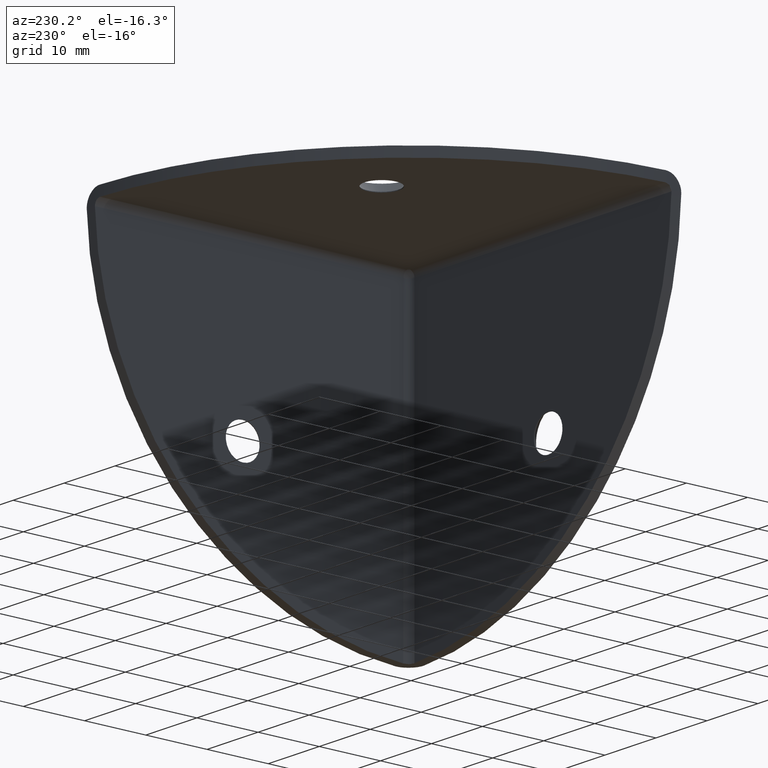
[diagram: clean part render]
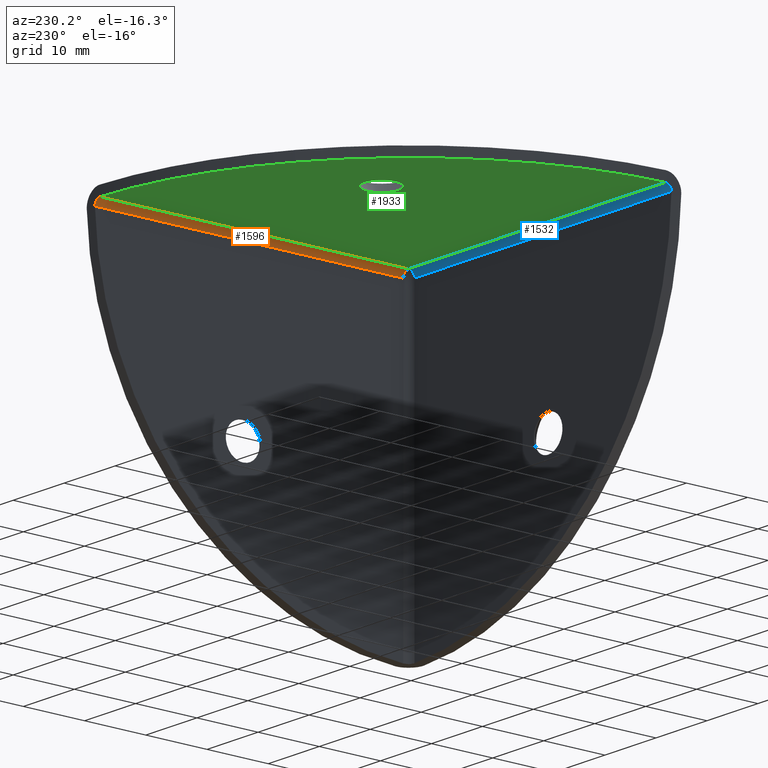
[diagram: same view with three faces highlighted in distinct colors, each labeled with its STEP entity id]
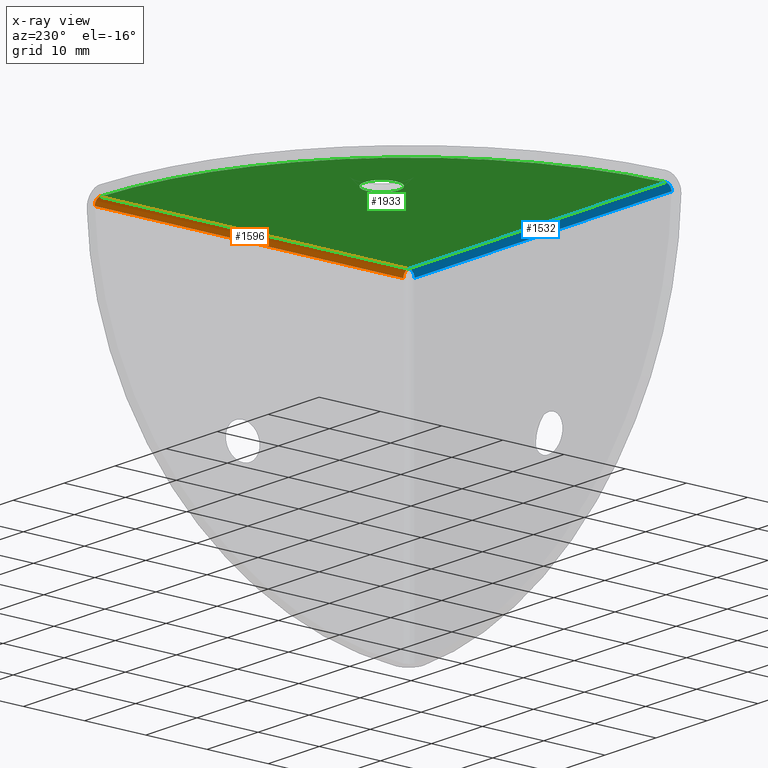
[diagram: x-ray of the same camera — body ghosted, the three highlighted faces saturated]
A machine part, auxiliary view with three faces highlighted in distinct colors.
The next image is the same camera in x-ray (body ghosted, the three faces saturated) — at least one of them is partly hidden behind the body in this view.
Their STEP definitions:

[orange] entity #1596 — the highlighted face is a freeform B-spline surface patch.
#1373=CARTESIAN_POINT('',(-1.600000000000000,2.600000000000000,50.399999999999999));
#1374=VERTEX_POINT('',#1373);
#1437=CARTESIAN_POINT('',(-2.600000000000000,2.600000000000000,51.399999999999999));
#1438=VERTEX_POINT('',#1437);
#1452=CARTESIAN_POINT('',(-2.600000000000000,2.600000000000000,51.399999999999999));
#1453=CARTESIAN_POINT('',(-1.600000000000000,2.600000000000001,51.399999999999999));
#1454=CARTESIAN_POINT('',(-1.600000000000000,2.600000000000000,50.399999999999999));
#1462=(BOUNDED_CURVE()B_SPLINE_CURVE(2,(#1452,#1453,#1454),.UNSPECIFIED.,.F.,.U.)CURVE()GEOMETRIC_REPRESENTATION_ITEM()QUASI_UNIFORM_CURVE()RATIONAL_B_SPLINE_CURVE((1.0,0.707106781186548,1.0))REPRESENTATION_ITEM(''));
#1463=EDGE_CURVE('',#1438,#1374,#1462,.T.);
#1533=CARTESIAN_POINT('',(-1.600951778418143,1.340104646377056,50.356380612634659));
#1534=CARTESIAN_POINT('',(-1.600951778418143,54.287206882381213,50.356380612634659));
#1535=CARTESIAN_POINT('',(-1.552065517383379,1.340104646377056,51.476060073914169));
#1536=CARTESIAN_POINT('',(-1.552065517383379,54.287206882381206,51.476060073914169));
#1537=CARTESIAN_POINT('',(-2.670057923380685,1.340104646377057,51.397542925077211));
#1538=CARTESIAN_POINT('',(-2.670057923380685,54.287206882381220,51.397542925077211));
#1546=(BOUNDED_SURFACE()B_SPLINE_SURFACE(1,2,((#1533,#1535,#1537),(#1534,#1536,#1538)),.UNSPECIFIED.,.F.,.F.,.U.)B_SPLINE_SURFACE_WITH_KNOTS((2,2),(3,3),(0.0,52.947102236004163),(0.0,0.994386482516117),.UNSPECIFIED.)GEOMETRIC_REPRESENTATION_ITEM()RATIONAL_B_SPLINE_SURFACE(((1.0,0.664513936473790,0.996233486233593),(1.0,0.664513936473790,0.996233486233593)))REPRESENTATION_ITEM('')SURFACE());
#1547=CARTESIAN_POINT('',(-1.600000000000045,52.978906015927301,50.399999999999999));
#1548=VERTEX_POINT('',#1547);
#1549=CARTESIAN_POINT('',(-1.892893218813860,52.995814144917702,51.107106781187007));
#1550=VERTEX_POINT('',#1549);
#1551=CARTESIAN_POINT('',(-1.600000000000000,52.978906015927301,50.399999999999999));
#1552=CARTESIAN_POINT('',(-1.600000000000001,52.980932897202933,50.465983707243183));
#1553=CARTESIAN_POINT('',(-1.606466771977097,52.982800404787923,50.530870518642999));
#1554=CARTESIAN_POINT('',(-1.625473760273683,52.985382712459007,50.626621821640697));
#1555=CARTESIAN_POINT('',(-1.633372059165146,52.986206912710607,50.658273814349862));
#1556=CARTESIAN_POINT('',(-1.652365442437346,52.987784805337753,50.721035332159097));
#1557=CARTESIAN_POINT('',(-1.663514982672477,52.988540259808808,50.752232695977817));
#1558=CARTESIAN_POINT('',(-1.701085360175703,52.990659848310337,50.842990642664667));
#1559=CARTESIAN_POINT('',(-1.731742159709256,52.991895005197307,50.900390665796813));
#1560=CARTESIAN_POINT('',(-1.804174111683421,52.994072226162999,51.009035016339837));
#1561=CARTESIAN_POINT('',(-1.846216729872224,52.995015616675467,51.060430292245428));
#1562=CARTESIAN_POINT('',(-1.892893218813860,52.995814144917702,51.107106781187007));
#1563=B_SPLINE_CURVE_WITH_KNOTS('',3,(#1551,#1552,#1553,#1554,#1555,#1556,#1557,#1558,#1559,#1560,#1561,#1562),.UNSPECIFIED.,.F.,.U.,(4,2,2,2,2,4),(0.0,0.250000000000012,0.375000000000018,0.500000000000024,0.750000000000012,1.0),.UNSPECIFIED.);
#1564=EDGE_CURVE('',#1548,#1550,#1563,.T.);
#1565=ORIENTED_EDGE('',*,*,#1564,.F.);
#1566=CARTESIAN_POINT('',(-1.600000000000000,2.600000000000000,50.399999999999999));
#1567=CARTESIAN_POINT('',(-1.600000000000045,52.978906015927301,50.399999999999999));
#1568=QUASI_UNIFORM_CURVE('',1,(#1566,#1567),.UNSPECIFIED.,.F.,.U.);
#1569=EDGE_CURVE('',#1374,#1548,#1568,.T.);
#1570=ORIENTED_EDGE('',*,*,#1569,.F.);
#1571=ORIENTED_EDGE('',*,*,#1463,.F.);
#1572=CARTESIAN_POINT('',(-2.600000000000000,52.978906015927301,51.399999999999999));
#1573=VERTEX_POINT('',#1572);
#1574=CARTESIAN_POINT('',(-2.600000000000000,52.978906015927301,51.399999999999999));
#1575=CARTESIAN_POINT('',(-2.600000000000000,2.600000000000000,51.399999999999999));
#1576=QUASI_UNIFORM_CURVE('',1,(#1574,#1575),.UNSPECIFIED.,.F.,.U.);
#1577=EDGE_CURVE('',#1573,#1438,#1576,.T.);
#1578=ORIENTED_EDGE('',*,*,#1577,.F.);
#1579=CARTESIAN_POINT('',(-1.892893218813860,52.995814144917702,51.107106781187007));
#1580=CARTESIAN_POINT('',(-1.939569483680681,52.995015620508873,51.153783046053768));
#1581=CARTESIAN_POINT('',(-1.990041304366374,52.994089542488631,51.195102201830963));
#1582=CARTESIAN_POINT('',(-2.071207689317572,52.992464749535387,51.249375048254286));
#1583=CARTESIAN_POINT('',(-2.099179681709927,52.991883712529997,51.266172150145692));
#1584=CARTESIAN_POINT('',(-2.156998055899073,52.990632912064527,51.297120093645802));
#1585=CARTESIAN_POINT('',(-2.186944370235894,52.989960548325953,51.311294180544500));
#1586=CARTESIAN_POINT('',(-2.277688229407410,52.987841851781582,51.348895816006042));
#1587=CARTESIAN_POINT('',(-2.339949193349719,52.986282590341183,51.367798766883709));
#1588=CARTESIAN_POINT('',(-2.467966679243131,52.982833395050548,51.393392207253008));
#1589=CARTESIAN_POINT('',(-2.534016511641641,52.980932890479238,51.400000000000020));
#1590=CARTESIAN_POINT('',(-2.600000000000000,52.978906015927301,51.399999999999999));
#1591=B_SPLINE_CURVE_WITH_KNOTS('',3,(#1579,#1580,#1581,#1582,#1583,#1584,#1585,#1586,#1587,#1588,#1589,#1590),.UNSPECIFIED.,.F.,.U.,(4,2,2,2,2,4),(0.0,0.250000000000005,0.375000000000008,0.500000000000010,0.750000000000005,1.0),.UNSPECIFIED.);
#1592=EDGE_CURVE('',#1550,#1573,#1591,.T.);
#1593=ORIENTED_EDGE('',*,*,#1592,.F.);
#1594=EDGE_LOOP('',(#1565,#1570,#1571,#1578,#1593));
#1595=FACE_OUTER_BOUND('',#1594,.T.);
#1596=ADVANCED_FACE('',(#1595),#1546,.F.);

[blue] entity #1532 — the highlighted face is a freeform B-spline surface patch.
#1366=CARTESIAN_POINT('',(-2.600000000000000,1.600000000000000,50.399999999999999));
#1367=VERTEX_POINT('',#1366);
#1437=CARTESIAN_POINT('',(-2.600000000000000,2.600000000000000,51.399999999999999));
#1438=VERTEX_POINT('',#1437);
#1439=CARTESIAN_POINT('',(-2.600000000000000,1.600000000000000,50.399999999999999));
#1440=CARTESIAN_POINT('',(-2.600000000000001,1.600000000000000,51.399999999999999));
#1441=CARTESIAN_POINT('',(-2.600000000000000,2.600000000000000,51.399999999999999));
#1449=(BOUNDED_CURVE()B_SPLINE_CURVE(2,(#1439,#1440,#1441),.UNSPECIFIED.,.F.,.U.)CURVE()GEOMETRIC_REPRESENTATION_ITEM()QUASI_UNIFORM_CURVE()RATIONAL_B_SPLINE_CURVE((1.0,0.707106781186548,1.0))REPRESENTATION_ITEM(''));
#1450=EDGE_CURVE('',#1367,#1438,#1449,.T.);
#1469=CARTESIAN_POINT('',(-1.340104646377056,2.626176948307875,51.399657324975557));
#1470=CARTESIAN_POINT('',(-54.287206882381213,2.626176948307875,51.399657324975557));
#1471=CARTESIAN_POINT('',(-1.340104646377056,1.535242411405881,51.428224451195995));
#1472=CARTESIAN_POINT('',(-54.287206882381213,1.535242411405881,51.428224451195995));
#1473=CARTESIAN_POINT('',(-1.340104646377056,1.601865201578136,50.338951460465147));
#1474=CARTESIAN_POINT('',(-54.287206882381213,1.601865201578136,50.338951460465147));
#1482=(BOUNDED_SURFACE()B_SPLINE_SURFACE(1,2,((#1469,#1471,#1473),(#1470,#1472,#1474)),.UNSPECIFIED.,.F.,.F.,.U.)B_SPLINE_SURFACE_WITH_KNOTS((2,2),(3,3),(0.0,52.947102236004163),(0.0,1.0),.UNSPECIFIED.)GEOMETRIC_REPRESENTATION_ITEM()RATIONAL_B_SPLINE_SURFACE(((1.0,0.675590207615660,1.0),(1.0,0.675590207615660,1.0)))REPRESENTATION_ITEM('')SURFACE());
#1483=CARTESIAN_POINT('',(-52.978906015927301,2.600000000000000,51.399999999999999));
#1484=VERTEX_POINT('',#1483);
#1485=CARTESIAN_POINT('',(-52.995814144917702,1.892893218813705,51.107106781186801));
#1486=VERTEX_POINT('',#1485);
#1487=CARTESIAN_POINT('',(-52.978906015927301,2.600000000000000,51.399999999999999));
#1488=CARTESIAN_POINT('',(-52.980932897202933,2.534016292756916,51.399999999999999));
#1489=CARTESIAN_POINT('',(-52.982800404787923,2.469129481357166,51.393533228022939));
#1490=CARTESIAN_POINT('',(-52.985382712459042,2.373378178359550,51.374526239726379));
#1491=CARTESIAN_POINT('',(-52.986206912710642,2.341726185650438,51.366627940834938));
#1492=CARTESIAN_POINT('',(-52.987784805337732,2.278964667841297,51.347634557562763));
#1493=CARTESIAN_POINT('',(-52.988540259808786,2.247767304022607,51.336485017327682));
#1494=CARTESIAN_POINT('',(-52.990659848310337,2.157009357335825,51.298914639824531));
#1495=CARTESIAN_POINT('',(-52.991895005197321,2.099609334203743,51.268257840291078));
#1496=CARTESIAN_POINT('',(-52.994072226162999,1.990964983660815,51.195825888317081));
#1497=CARTESIAN_POINT('',(-52.995015616675481,1.939569707755272,51.153783270128358));
#1498=CARTESIAN_POINT('',(-52.995814144917702,1.892893218813705,51.107106781186801));
#1499=B_SPLINE_CURVE_WITH_KNOTS('',3,(#1487,#1488,#1489,#1490,#1491,#1492,#1493,#1494,#1495,#1496,#1497,#1498),.UNSPECIFIED.,.F.,.U.,(4,2,2,2,2,4),(0.0,0.249999999999995,0.374999999999993,0.499999999999990,0.749999999999995,1.0),.UNSPECIFIED.);
#1500=EDGE_CURVE('',#1484,#1486,#1499,.T.);
#1501=ORIENTED_EDGE('',*,*,#1500,.F.);
#1502=CARTESIAN_POINT('',(-2.600000000000000,2.600000000000000,51.399999999999999));
#1503=CARTESIAN_POINT('',(-52.978906015927301,2.600000000000000,51.399999999999999));
#1504=QUASI_UNIFORM_CURVE('',1,(#1502,#1503),.UNSPECIFIED.,.F.,.U.);
#1505=EDGE_CURVE('',#1438,#1484,#1504,.T.);
#1506=ORIENTED_EDGE('',*,*,#1505,.F.);
#1507=ORIENTED_EDGE('',*,*,#1450,.F.);
#1508=CARTESIAN_POINT('',(-52.978906015927301,1.600000000000045,50.399999999999999));
#1509=VERTEX_POINT('',#1508);
#1510=CARTESIAN_POINT('',(-52.978906015927301,1.600000000000045,50.399999999999999));
#1511=CARTESIAN_POINT('',(-2.600000000000000,1.600000000000000,50.399999999999999));
#1512=QUASI_UNIFORM_CURVE('',1,(#1510,#1511),.UNSPECIFIED.,.F.,.U.);
#1513=EDGE_CURVE('',#1509,#1367,#1512,.T.);
#1514=ORIENTED_EDGE('',*,*,#1513,.F.);
#1515=CARTESIAN_POINT('',(-52.995814144917702,1.892893218813705,51.107106781186801));
#1516=CARTESIAN_POINT('',(-52.995015620508887,1.846216953946840,51.060430516319983));
#1517=CARTESIAN_POINT('',(-52.994089542488673,1.804897798169520,51.009958695634282));
#1518=CARTESIAN_POINT('',(-52.992464749535422,1.750624951746049,50.928792310683022));
#1519=CARTESIAN_POINT('',(-52.991883712529997,1.733827849854625,50.900820318290627));
#1520=CARTESIAN_POINT('',(-52.990632912064541,1.702879906354483,50.843001944101452));
#1521=CARTESIAN_POINT('',(-52.989960548325939,1.688705819455719,50.813055629764577));
#1522=CARTESIAN_POINT('',(-52.987841851781603,1.651104183994073,50.722311770592967));
#1523=CARTESIAN_POINT('',(-52.986282590341197,1.632201233116365,50.660050806650602));
#1524=CARTESIAN_POINT('',(-52.982833395050562,1.606607792747001,50.532033320757037));
#1525=CARTESIAN_POINT('',(-52.980932890479238,1.600000000000000,50.465983488358432));
#1526=CARTESIAN_POINT('',(-52.978906015927301,1.600000000000000,50.399999999999999));
#1527=B_SPLINE_CURVE_WITH_KNOTS('',3,(#1515,#1516,#1517,#1518,#1519,#1520,#1521,#1522,#1523,#1524,#1525,#1526),.UNSPECIFIED.,.F.,.U.,(4,2,2,2,2,4),(0.0,0.250000000000012,0.375000000000018,0.500000000000024,0.750000000000012,1.0),.UNSPECIFIED.);
#1528=EDGE_CURVE('',#1486,#1509,#1527,.T.);
#1529=ORIENTED_EDGE('',*,*,#1528,.F.);
#1530=EDGE_LOOP('',(#1501,#1506,#1507,#1514,#1529));
#1531=FACE_OUTER_BOUND('',#1530,.T.);
#1532=ADVANCED_FACE('',(#1531),#1482,.F.);

[green] entity #1933 — the highlighted face is a freeform B-spline surface patch.
#79=CARTESIAN_POINT('',(-28.480518107502441,31.581713738033841,51.399999999999999));
#80=VERTEX_POINT('',#79);
#86=CARTESIAN_POINT('',(-26.0,28.800000000000001,51.399999999999999));
#87=VERTEX_POINT('',#86);
#88=CARTESIAN_POINT('',(-28.480518107502448,31.581713738033837,51.399999999999999));
#89=CARTESIAN_POINT('',(-26.000000000000007,31.296824359591099,51.399999999999999));
#90=CARTESIAN_POINT('',(-26.0,28.800000000000001,51.399999999999999));
#98=(BOUNDED_CURVE()B_SPLINE_CURVE(2,(#88,#89,#90),.UNSPECIFIED.,.F.,.U.)B_SPLINE_CURVE_WITH_KNOTS((3,3),(0.269767759675936,0.500000000000000),.UNSPECIFIED.)CURVE()GEOMETRIC_REPRESENTATION_ITEM()RATIONAL_B_SPLINE_CURVE((0.957343728966128,0.730266152227410,1.0))REPRESENTATION_ITEM(''));
#99=EDGE_CURVE('',#80,#87,#98,.T.);
#101=CARTESIAN_POINT('',(-28.629064089283791,26.005222564419910,51.399999999999999));
#102=VERTEX_POINT('',#101);
#103=CARTESIAN_POINT('',(-26.0,28.800000000000001,51.399999999999999));
#104=CARTESIAN_POINT('',(-26.0,26.166023012699181,51.399999999999991));
#105=CARTESIAN_POINT('',(-28.629064089283787,26.005222564419913,51.399999999999999));
#113=(BOUNDED_CURVE()B_SPLINE_CURVE(2,(#103,#104,#105),.UNSPECIFIED.,.F.,.U.)B_SPLINE_CURVE_WITH_KNOTS((3,3),(0.500000000000000,0.739332962239671),.UNSPECIFIED.)CURVE()GEOMETRIC_REPRESENTATION_ITEM()RATIONAL_B_SPLINE_CURVE((1.0,0.719603993285857,0.976072041668278))REPRESENTATION_ITEM(''));
#114=EDGE_CURVE('',#87,#102,#113,.T.);
#209=CARTESIAN_POINT('',(-31.600000000000001,28.800000000000001,51.399999999999999));
#210=VERTEX_POINT('',#209);
#211=CARTESIAN_POINT('',(-28.629064089283787,26.005222564419910,51.399999999999999));
#212=CARTESIAN_POINT('',(-28.714452262745294,25.999999999999996,51.399999999999999));
#213=CARTESIAN_POINT('',(-28.800000000000001,26.0,51.399999999999999));
#214=CARTESIAN_POINT('',(-31.600000000000001,26.000000000000007,51.400000000000006));
#215=CARTESIAN_POINT('',(-31.600000000000001,28.800000000000001,51.399999999999999));
#223=(BOUNDED_CURVE()B_SPLINE_CURVE(2,(#211,#212,#213,#214,#215),.UNSPECIFIED.,.F.,.U.)B_SPLINE_CURVE_WITH_KNOTS((3,2,3),(0.739332962239670,0.750000000000000,1.0),.UNSPECIFIED.)CURVE()GEOMETRIC_REPRESENTATION_ITEM()RATIONAL_B_SPLINE_CURVE((0.976072041668277,0.987502787900690,1.0,0.707106781186547,1.0))REPRESENTATION_ITEM(''));
#224=EDGE_CURVE('',#102,#210,#223,.T.);
#226=CARTESIAN_POINT('',(-31.600000000000001,28.800000000000001,51.399999999999999));
#227=CARTESIAN_POINT('',(-31.600000000000001,31.600000000000001,51.400000000000006));
#228=CARTESIAN_POINT('',(-28.800000000000001,31.600000000000001,51.399999999999999));
#229=CARTESIAN_POINT('',(-28.639735710396405,31.600000000000001,51.400000000000006));
#230=CARTESIAN_POINT('',(-28.480518107502444,31.581713738033834,51.399999999999999));
#238=(BOUNDED_CURVE()B_SPLINE_CURVE(2,(#226,#227,#228,#229,#230),.UNSPECIFIED.,.F.,.U.)B_SPLINE_CURVE_WITH_KNOTS((3,2,3),(0.0,0.250000000000000,0.269767759675936),.UNSPECIFIED.)CURVE()GEOMETRIC_REPRESENTATION_ITEM()RATIONAL_B_SPLINE_CURVE((1.0,0.707106781186547,1.0,0.976840628959137,0.957343728966127))REPRESENTATION_ITEM(''));
#239=EDGE_CURVE('',#210,#80,#238,.T.);
#1437=CARTESIAN_POINT('',(-2.600000000000000,2.600000000000000,51.399999999999999));
#1438=VERTEX_POINT('',#1437);
#1483=CARTESIAN_POINT('',(-52.978906015927301,2.600000000000000,51.399999999999999));
#1484=VERTEX_POINT('',#1483);
#1502=CARTESIAN_POINT('',(-2.600000000000000,2.600000000000000,51.399999999999999));
#1503=CARTESIAN_POINT('',(-52.978906015927301,2.600000000000000,51.399999999999999));
#1504=QUASI_UNIFORM_CURVE('',1,(#1502,#1503),.UNSPECIFIED.,.F.,.U.);
#1505=EDGE_CURVE('',#1438,#1484,#1504,.T.);
#1572=CARTESIAN_POINT('',(-2.600000000000000,52.978906015927301,51.399999999999999));
#1573=VERTEX_POINT('',#1572);
#1574=CARTESIAN_POINT('',(-2.600000000000000,52.978906015927301,51.399999999999999));
#1575=CARTESIAN_POINT('',(-2.600000000000000,2.600000000000000,51.399999999999999));
#1576=QUASI_UNIFORM_CURVE('',1,(#1574,#1575),.UNSPECIFIED.,.F.,.U.);
#1577=EDGE_CURVE('',#1573,#1438,#1576,.T.);
#1646=CARTESIAN_POINT('',(-2.600000000000000,52.978906015927308,51.399999999999999));
#1647=CARTESIAN_POINT('',(-51.477491846258353,51.477491846258353,51.400000000000006));
#1648=CARTESIAN_POINT('',(-52.978906015927308,2.600000000000009,51.399999999999999));
#1656=(BOUNDED_CURVE()B_SPLINE_CURVE(2,(#1646,#1647,#1648),.UNSPECIFIED.,.F.,.U.)CURVE()GEOMETRIC_REPRESENTATION_ITEM()QUASI_UNIFORM_CURVE()RATIONAL_B_SPLINE_CURVE((1.0,0.728484006415548,1.0))REPRESENTATION_ITEM(''));
#1657=EDGE_CURVE('',#1573,#1484,#1656,.T.);
#1917=CARTESIAN_POINT('',(-55.495330855015403,0.083573449216241,51.399999999999999));
#1918=CARTESIAN_POINT('',(-0.083572458376782,0.083573449216241,51.399999999999999));
#1919=CARTESIAN_POINT('',(-55.495330855015403,55.495329864175943,51.399999999999999));
#1920=CARTESIAN_POINT('',(-0.083572458376782,55.495329864175943,51.399999999999999));
#1921=B_SPLINE_SURFACE_WITH_KNOTS('',1,1,((#1917,#1919),(#1918,#1920)),.UNSPECIFIED.,.F.,.F.,.U.,(2,2),(2,2),(0.0,55.411758396638618),(0.0,55.411756414959697),.UNSPECIFIED.);
#1922=ORIENTED_EDGE('',*,*,#1657,.F.);
#1923=ORIENTED_EDGE('',*,*,#1577,.T.);
#1924=ORIENTED_EDGE('',*,*,#1505,.T.);
#1925=EDGE_LOOP('',(#1922,#1923,#1924));
#1926=FACE_OUTER_BOUND('',#1925,.T.);
#1927=ORIENTED_EDGE('',*,*,#114,.F.);
#1928=ORIENTED_EDGE('',*,*,#99,.F.);
#1929=ORIENTED_EDGE('',*,*,#239,.F.);
#1930=ORIENTED_EDGE('',*,*,#224,.F.);
#1931=EDGE_LOOP('',(#1927,#1928,#1929,#1930));
#1932=FACE_BOUND('',#1931,.T.);
#1933=ADVANCED_FACE('',(#1926,#1932),#1921,.F.);